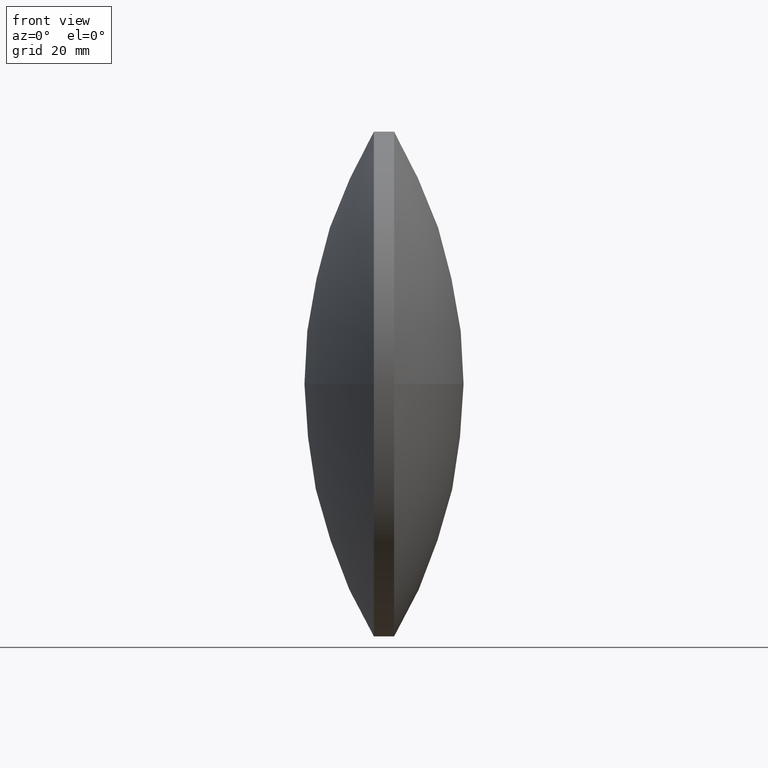
[diagram: clean part render]
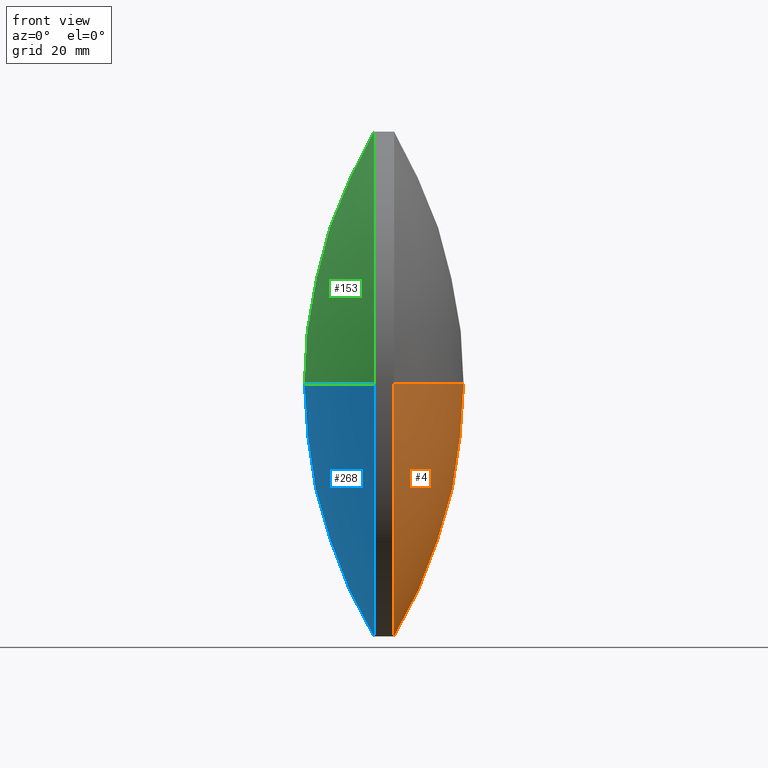
[diagram: same view with three faces highlighted in distinct colors, each labeled with its STEP entity id]
A machine part, front view with three faces highlighted in distinct colors.
Their STEP definitions:

[orange] entity #4 — the highlighted spherical surface has radius 97.723 mm.
#4 = ADVANCED_FACE ( 'NONE', ( #195 ), #15, .T. ) ;
#6 = CARTESIAN_POINT ( 'NONE',  ( 258.4235664082096900, 191.4020197763163400, 0.0000000000000000000 ) ) ;
#15 = SPHERICAL_SURFACE ( 'NONE', #243, 97.72302325581290500 ) ;
#25 = AXIS2_PLACEMENT_3D ( 'NONE', #41, #285, #342 ) ;
#41 = CARTESIAN_POINT ( 'NONE',  ( 342.3865896640226700, 191.4020197763163700, 0.0000000000000000000 ) ) ;
#45 = DIRECTION ( 'NONE',  ( 0.0000000000000000000, 1.000000000000000000, 0.0000000000000000000 ) ) ;
#46 = EDGE_LOOP ( 'NONE', ( #259, #317, #330, #211 ) ) ;
#49 = AXIS2_PLACEMENT_3D ( 'NONE', #276, #278, #303 ) ;
#50 = CARTESIAN_POINT ( 'NONE',  ( 258.4235664082096900, 191.4020197763163400, 0.0000000000000000000 ) ) ;
#58 = CIRCLE ( 'NONE', #49, 49.99999999999951700 ) ;
#60 = CARTESIAN_POINT ( 'NONE',  ( 258.4235664082096900, 191.4020197763163400, 0.0000000000000000000 ) ) ;
#64 = CARTESIAN_POINT ( 'NONE',  ( 342.3865896640226700, 191.4020197763163700, -49.99999999999951700 ) ) ;
#105 = VERTEX_POINT ( 'NONE', #109 ) ;
#108 = EDGE_CURVE ( 'NONE', #169, #105, #296, .T. ) ;
#109 = CARTESIAN_POINT ( 'NONE',  ( 342.3865896640226700, 241.4020197763158800, 0.0000000000000000000 ) ) ;
#133 = VERTEX_POINT ( 'NONE', #294 ) ;
#138 = DIRECTION ( 'NONE',  ( 0.0000000000000000000, 1.000000000000000000, 1.224646799147353500E-016 ) ) ;
#152 = AXIS2_PLACEMENT_3D ( 'NONE', #6, #324, #297 ) ;
#163 = AXIS2_PLACEMENT_3D ( 'NONE', #60, #295, #138 ) ;
#169 = VERTEX_POINT ( 'NONE', #309 ) ;
#177 = EDGE_CURVE ( 'NONE', #214, #133, #256, .T. ) ;
#195 = FACE_OUTER_BOUND ( 'NONE', #46, .T. ) ;
#205 = EDGE_CURVE ( 'NONE', #105, #214, #58, .T. ) ;
#211 = ORIENTED_EDGE ( 'NONE', *, *, #205, .F. ) ;
#214 = VERTEX_POINT ( 'NONE', #64 ) ;
#243 = AXIS2_PLACEMENT_3D ( 'NONE', #50, #344, #45 ) ;
#256 = CIRCLE ( 'NONE', #25, 49.99999999999951700 ) ;
#259 = ORIENTED_EDGE ( 'NONE', *, *, #108, .F. ) ;
#271 = EDGE_CURVE ( 'NONE', #169, #133, #315, .T. ) ;
#276 = CARTESIAN_POINT ( 'NONE',  ( 342.3865896640226700, 191.4020197763163700, 0.0000000000000000000 ) ) ;
#278 = DIRECTION ( 'NONE',  ( -1.000000000000000000, -0.0000000000000000000, -0.0000000000000000000 ) ) ;
#285 = DIRECTION ( 'NONE',  ( -1.000000000000000000, -0.0000000000000000000, -0.0000000000000000000 ) ) ;
#294 = CARTESIAN_POINT ( 'NONE',  ( 342.3865896640226700, 141.4020197763168200, -6.123233995736706100E-015 ) ) ;
#295 = DIRECTION ( 'NONE',  ( 0.0000000000000000000, 1.224646799147353200E-016, -1.000000000000000000 ) ) ;
#296 = CIRCLE ( 'NONE', #152, 97.72302325581289000 ) ;
#297 = DIRECTION ( 'NONE',  ( 1.000000000000000000, 0.0000000000000000000, 0.0000000000000000000 ) ) ;
#303 = DIRECTION ( 'NONE',  ( 0.0000000000000000000, 0.0000000000000000000, 1.000000000000000000 ) ) ;
#309 = CARTESIAN_POINT ( 'NONE',  ( 356.1465896640226000, 191.4020197763163400, 0.0000000000000000000 ) ) ;
#315 = CIRCLE ( 'NONE', #163, 97.72302325581289000 ) ;
#317 = ORIENTED_EDGE ( 'NONE', *, *, #271, .T. ) ;
#324 = DIRECTION ( 'NONE',  ( -0.0000000000000000000, 0.0000000000000000000, 1.000000000000000000 ) ) ;
#330 = ORIENTED_EDGE ( 'NONE', *, *, #177, .F. ) ;
#342 = DIRECTION ( 'NONE',  ( 0.0000000000000000000, 0.0000000000000000000, 1.000000000000000000 ) ) ;
#344 = DIRECTION ( 'NONE',  ( -0.0000000000000000000, 0.0000000000000000000, -1.000000000000000000 ) ) ;

[blue] entity #268 — the highlighted spherical surface has radius 97.723 mm.
#3 = EDGE_CURVE ( 'NONE', #229, #267, #107, .T. ) ;
#22 = ORIENTED_EDGE ( 'NONE', *, *, #3, .T. ) ;
#30 = AXIS2_PLACEMENT_3D ( 'NONE', #134, #272, #319 ) ;
#35 = DIRECTION ( 'NONE',  ( 0.0000000000000000000, 0.0000000000000000000, 1.000000000000000000 ) ) ;
#77 = CIRCLE ( 'NONE', #200, 49.99999999999951700 ) ;
#89 = ORIENTED_EDGE ( 'NONE', *, *, #95, .F. ) ;
#95 = EDGE_CURVE ( 'NONE', #244, #267, #311, .T. ) ;
#107 = CIRCLE ( 'NONE', #280, 97.72302325581320300 ) ;
#117 = CARTESIAN_POINT ( 'NONE',  ( 338.3865896640227200, 141.4020197763167300, -6.123233995736697500E-015 ) ) ;
#119 = DIRECTION ( 'NONE',  ( -1.000000000000000000, -0.0000000000000000000, -0.0000000000000000000 ) ) ;
#121 = ORIENTED_EDGE ( 'NONE', *, *, #137, .T. ) ;
#134 = CARTESIAN_POINT ( 'NONE',  ( 422.3496129198360900, 191.4020197763161900, 0.0000000000000000000 ) ) ;
#136 = FACE_OUTER_BOUND ( 'NONE', #339, .T. ) ;
#137 = EDGE_CURVE ( 'NONE', #244, #304, #162, .T. ) ;
#139 = CARTESIAN_POINT ( 'NONE',  ( 338.3865896640227200, 191.4020197763163700, 0.0000000000000000000 ) ) ;
#148 = CARTESIAN_POINT ( 'NONE',  ( 324.6265896640229000, 191.4020197763161900, 0.0000000000000000000 ) ) ;
#159 = DIRECTION ( 'NONE',  ( -0.0000000000000000000, 0.0000000000000000000, -1.000000000000000000 ) ) ;
#162 = CIRCLE ( 'NONE', #227, 49.99999999999951700 ) ;
#175 = DIRECTION ( 'NONE',  ( -1.000000000000000000, -0.0000000000000000000, -0.0000000000000000000 ) ) ;
#179 = CARTESIAN_POINT ( 'NONE',  ( 422.3496129198360900, 191.4020197763161900, 0.0000000000000000000 ) ) ;
#193 = CARTESIAN_POINT ( 'NONE',  ( 338.3865896640227200, 241.4020197763158300, 0.0000000000000000000 ) ) ;
#194 = SPHERICAL_SURFACE ( 'NONE', #197, 97.72302325581320300 ) ;
#197 = AXIS2_PLACEMENT_3D ( 'NONE', #206, #159, #250 ) ;
#200 = AXIS2_PLACEMENT_3D ( 'NONE', #139, #119, #35 ) ;
#206 = CARTESIAN_POINT ( 'NONE',  ( 422.3496129198360900, 191.4020197763161900, 0.0000000000000000000 ) ) ;
#227 = AXIS2_PLACEMENT_3D ( 'NONE', #235, #175, #260 ) ;
#229 = VERTEX_POINT ( 'NONE', #117 ) ;
#235 = CARTESIAN_POINT ( 'NONE',  ( 338.3865896640227200, 191.4020197763163700, 0.0000000000000000000 ) ) ;
#244 = VERTEX_POINT ( 'NONE', #193 ) ;
#250 = DIRECTION ( 'NONE',  ( 0.0000000000000000000, 1.000000000000000000, 0.0000000000000000000 ) ) ;
#252 = ORIENTED_EDGE ( 'NONE', *, *, #266, .T. ) ;
#260 = DIRECTION ( 'NONE',  ( 0.0000000000000000000, 0.0000000000000000000, 1.000000000000000000 ) ) ;
#264 = DIRECTION ( 'NONE',  ( 0.0000000000000000000, 1.224646799147353200E-016, -1.000000000000000000 ) ) ;
#266 = EDGE_CURVE ( 'NONE', #304, #229, #77, .T. ) ;
#267 = VERTEX_POINT ( 'NONE', #148 ) ;
#268 = ADVANCED_FACE ( 'NONE', ( #136 ), #194, .T. ) ;
#272 = DIRECTION ( 'NONE',  ( -0.0000000000000000000, 0.0000000000000000000, 1.000000000000000000 ) ) ;
#280 = AXIS2_PLACEMENT_3D ( 'NONE', #179, #264, #290 ) ;
#290 = DIRECTION ( 'NONE',  ( 0.0000000000000000000, 1.000000000000000000, 1.224646799147353200E-016 ) ) ;
#302 = CARTESIAN_POINT ( 'NONE',  ( 338.3865896640227200, 191.4020197763163700, -49.99999999999951700 ) ) ;
#304 = VERTEX_POINT ( 'NONE', #302 ) ;
#311 = CIRCLE ( 'NONE', #30, 97.72302325581317500 ) ;
#319 = DIRECTION ( 'NONE',  ( 1.000000000000000000, 0.0000000000000000000, 0.0000000000000000000 ) ) ;
#339 = EDGE_LOOP ( 'NONE', ( #121, #252, #22, #89 ) ) ;

[green] entity #153 — the highlighted spherical surface has radius 97.723 mm.
#3 = EDGE_CURVE ( 'NONE', #229, #267, #107, .T. ) ;
#19 = VERTEX_POINT ( 'NONE', #103 ) ;
#21 = DIRECTION ( 'NONE',  ( 0.0000000000000000000, 1.000000000000000000, 0.0000000000000000000 ) ) ;
#29 = CARTESIAN_POINT ( 'NONE',  ( 338.3865896640227200, 191.4020197763163700, 0.0000000000000000000 ) ) ;
#30 = AXIS2_PLACEMENT_3D ( 'NONE', #134, #272, #319 ) ;
#37 = ORIENTED_EDGE ( 'NONE', *, *, #78, .T. ) ;
#55 = CIRCLE ( 'NONE', #145, 49.99999999999951700 ) ;
#57 = EDGE_CURVE ( 'NONE', #229, #19, #55, .T. ) ;
#68 = AXIS2_PLACEMENT_3D ( 'NONE', #135, #84, #320 ) ;
#72 = FACE_OUTER_BOUND ( 'NONE', #282, .T. ) ;
#73 = DIRECTION ( 'NONE',  ( -1.000000000000000000, -0.0000000000000000000, -0.0000000000000000000 ) ) ;
#75 = DIRECTION ( 'NONE',  ( -0.0000000000000000000, 0.0000000000000000000, -1.000000000000000000 ) ) ;
#78 = EDGE_CURVE ( 'NONE', #19, #244, #333, .T. ) ;
#84 = DIRECTION ( 'NONE',  ( -1.000000000000000000, -0.0000000000000000000, -0.0000000000000000000 ) ) ;
#94 = ORIENTED_EDGE ( 'NONE', *, *, #95, .T. ) ;
#95 = EDGE_CURVE ( 'NONE', #244, #267, #311, .T. ) ;
#98 = CARTESIAN_POINT ( 'NONE',  ( 422.3496129198360900, 191.4020197763161900, 0.0000000000000000000 ) ) ;
#103 = CARTESIAN_POINT ( 'NONE',  ( 338.3865896640227200, 191.4020197763163700, 49.99999999999951700 ) ) ;
#107 = CIRCLE ( 'NONE', #280, 97.72302325581320300 ) ;
#117 = CARTESIAN_POINT ( 'NONE',  ( 338.3865896640227200, 141.4020197763167300, -6.123233995736697500E-015 ) ) ;
#126 = SPHERICAL_SURFACE ( 'NONE', #305, 97.72302325581320300 ) ;
#134 = CARTESIAN_POINT ( 'NONE',  ( 422.3496129198360900, 191.4020197763161900, 0.0000000000000000000 ) ) ;
#135 = CARTESIAN_POINT ( 'NONE',  ( 338.3865896640227200, 191.4020197763163700, 0.0000000000000000000 ) ) ;
#145 = AXIS2_PLACEMENT_3D ( 'NONE', #29, #73, #184 ) ;
#148 = CARTESIAN_POINT ( 'NONE',  ( 324.6265896640229000, 191.4020197763161900, 0.0000000000000000000 ) ) ;
#153 = ADVANCED_FACE ( 'NONE', ( #72 ), #126, .T. ) ;
#155 = ORIENTED_EDGE ( 'NONE', *, *, #57, .T. ) ;
#179 = CARTESIAN_POINT ( 'NONE',  ( 422.3496129198360900, 191.4020197763161900, 0.0000000000000000000 ) ) ;
#183 = ORIENTED_EDGE ( 'NONE', *, *, #3, .F. ) ;
#184 = DIRECTION ( 'NONE',  ( 0.0000000000000000000, 0.0000000000000000000, 1.000000000000000000 ) ) ;
#193 = CARTESIAN_POINT ( 'NONE',  ( 338.3865896640227200, 241.4020197763158300, 0.0000000000000000000 ) ) ;
#229 = VERTEX_POINT ( 'NONE', #117 ) ;
#244 = VERTEX_POINT ( 'NONE', #193 ) ;
#264 = DIRECTION ( 'NONE',  ( 0.0000000000000000000, 1.224646799147353200E-016, -1.000000000000000000 ) ) ;
#267 = VERTEX_POINT ( 'NONE', #148 ) ;
#272 = DIRECTION ( 'NONE',  ( -0.0000000000000000000, 0.0000000000000000000, 1.000000000000000000 ) ) ;
#280 = AXIS2_PLACEMENT_3D ( 'NONE', #179, #264, #290 ) ;
#282 = EDGE_LOOP ( 'NONE', ( #183, #155, #37, #94 ) ) ;
#290 = DIRECTION ( 'NONE',  ( 0.0000000000000000000, 1.000000000000000000, 1.224646799147353200E-016 ) ) ;
#305 = AXIS2_PLACEMENT_3D ( 'NONE', #98, #75, #21 ) ;
#311 = CIRCLE ( 'NONE', #30, 97.72302325581317500 ) ;
#319 = DIRECTION ( 'NONE',  ( 1.000000000000000000, 0.0000000000000000000, 0.0000000000000000000 ) ) ;
#320 = DIRECTION ( 'NONE',  ( 0.0000000000000000000, 0.0000000000000000000, 1.000000000000000000 ) ) ;
#333 = CIRCLE ( 'NONE', #68, 49.99999999999951700 ) ;